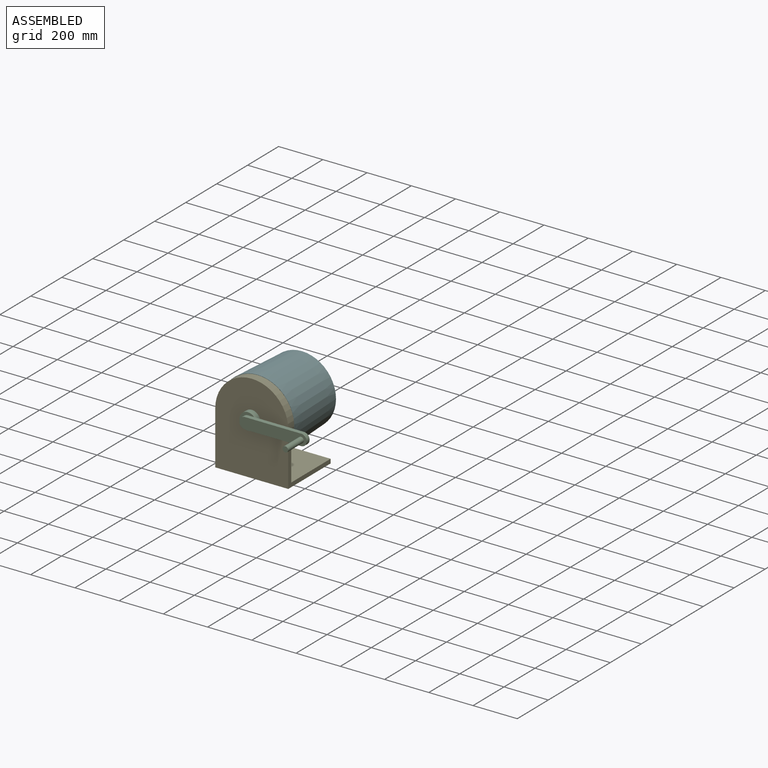
[diagram: assembled view]
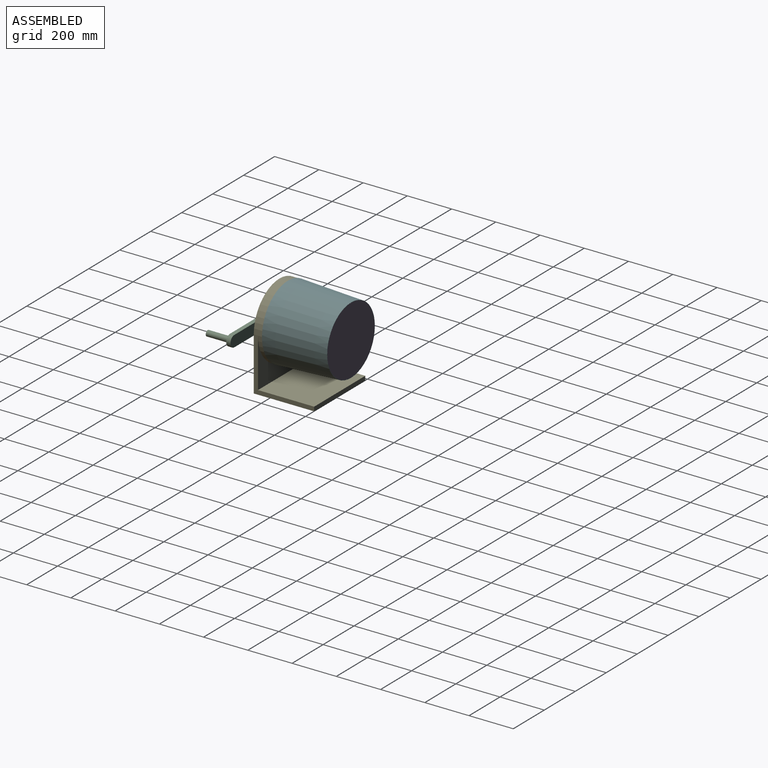
[diagram: assembled view, second angle]
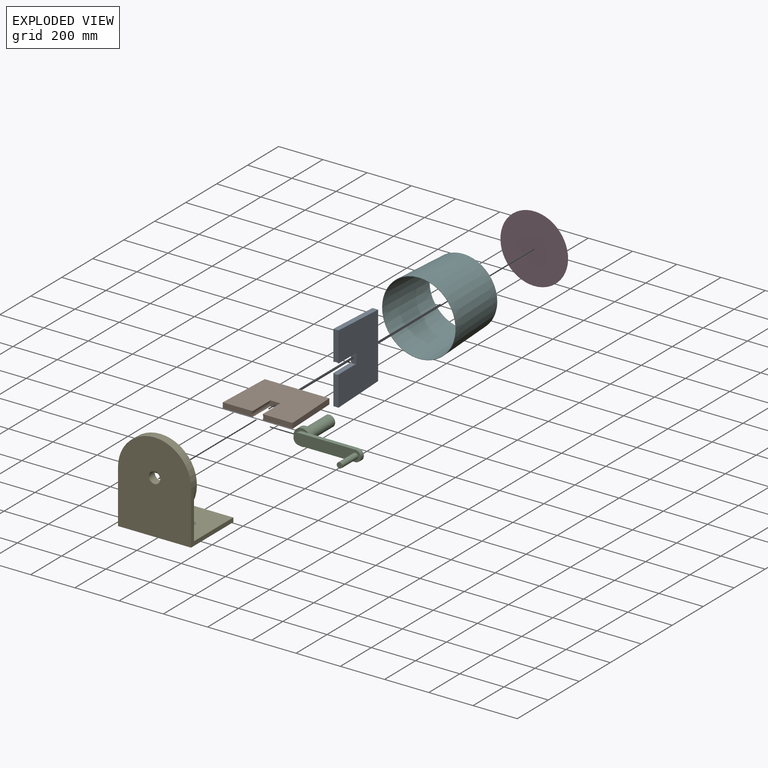
[diagram: exploded view]
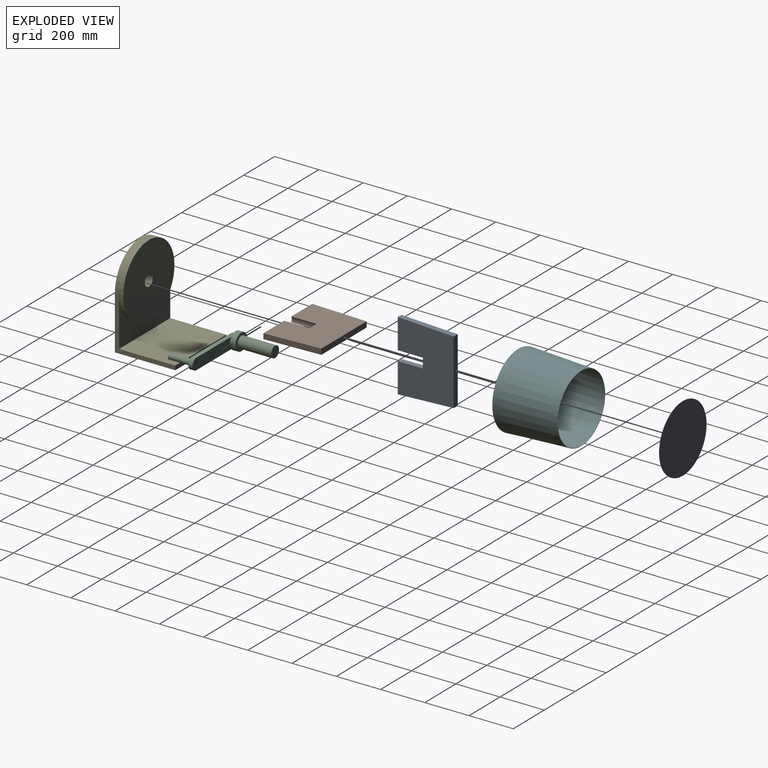
[diagram: exploded view, second angle]
ASSEMBLY  parts=6 mates=6
PART A: 10 faces, bbox 25.4x254x315.7 mm
  f0: plane 135.38x23.65mm, normal (0,-1,0), area 3155.2mm2, adj f2,f3,f4,f8
  f1: plane 254x25.4mm, normal (0,0.05,-1), area 6236.1mm2, adj f2,f4,f5,f6
  f2: plane 315.73x254mm, normal (1,0,0), area 72079.8mm2, adj f0,f1,f3,f5,f6,f7,f8,f9
  f3: plane 254x25.4mm, normal (0,0.05,1), area 6236.1mm2, adj f0,f2,f4,f5
  f4: plane 315.73x254mm, normal (-1,0,0), area 72079.8mm2, adj f0,f1,f3,f5,f6,f7,f8,f9
  f5: plane 292.1x25.4mm, normal (0,1,0), area 7419.3mm2, adj f1,f2,f3,f4
  f6: plane 135.38x23.65mm, normal (0,-1,0), area 3155.2mm2, adj f1,f2,f4,f7
  f7: cylinder r=25.4mm len=114.3mm, axis (0,-1,0), area 2862.8mm2, adj f2,f4,f6,f9
  f8: cylinder r=25.4mm len=114.3mm, axis (0,-1,0), area 2862.8mm2, adj f0,f2,f4,f9
  f9: plane 50.8x24.44mm, normal (0,-1,0), area 1191.7mm2, adj f2,f4,f7,f8
PART B: 10 faces, bbox 315.7x254x25.4 mm
  f0: plane 135.38x23.65mm, normal (0,-1,0), area 3155.2mm2, adj f2,f3,f4,f8
  f1: plane 254x25.4mm, normal (-1,0.05,0), area 6236.1mm2, adj f2,f4,f5,f6
  f2: plane 315.73x254mm, normal (0,0,-1), area 72079.8mm2, adj f0,f1,f3,f5,f6,f7,f8,f9
  f3: plane 254x25.4mm, normal (1,0.05,0), area 6236.1mm2, adj f0,f2,f4,f5
  f4: plane 315.73x254mm, normal (0,0,1), area 72079.8mm2, adj f0,f1,f3,f5,f6,f7,f8,f9
  f5: plane 292.1x25.4mm, normal (0,1,0), area 7419.3mm2, adj f1,f2,f3,f4
  f6: plane 135.38x23.65mm, normal (0,-1,0), area 3155.2mm2, adj f1,f2,f4,f7
  f7: cylinder r=25.4mm len=114.3mm, axis (0,-1,0), area 2862.8mm2, adj f2,f4,f6,f9
  f8: cylinder r=25.4mm len=114.3mm, axis (0,-1,0), area 2862.8mm2, adj f0,f2,f4,f9
  f9: plane 50.8x24.44mm, normal (0,-1,0), area 1191.7mm2, adj f2,f4,f7,f8
PART C: 13 faces, bbox 317.5x298.5x76.2 mm
  f0: plane 76.2x66.5mm, normal (0,-1,0), area 1766.4mm2, adj f1,f4,f5,f6
  f1: cylinder r=38.1mm len=76.2mm, axis (0,1,0), area 6080.5mm2, adj f0,f2,f3
  f2: plane 76.2x76.2mm, normal (0,1,0), area 2533.5mm2, adj f1,f11
  f3: plane 251x50.8mm, normal (0,1,0), area 12136mm2, adj f1,f4,f6,f7
  f4: plane 254x19.05mm, normal (0,0,-1), area 4838.7mm2, adj f0,f3,f5,f7,f8
  f5: cylinder r=25.4mm len=50.8mm, axis (0,1,0), area 1520.1mm2, adj f0,f4,f6,f8
  f6: plane 254x19.05mm, normal (0,0,1), area 4838.7mm2, adj f0,f3,f5,f7,f8
  f7: cylinder r=25.4mm len=50.8mm, axis (0,1,0), area 1520.1mm2, adj f3,f4,f6,f8
  f8: plane 304.8x50.8mm, normal (0,-1,0), area 14423.3mm2, adj f4,f5,f6,f7,f9
  f9: cylinder r=12.7mm len=101.6mm, axis (0,1,0), area 8107.3mm2, adj f8,f10
  f10: plane 25.4x25.4mm, normal (0,-1,0), area 506.7mm2, adj f9
  f11: cylinder r=25.4mm len=152.4mm, axis (0,-1,0), area 24322mm2, adj f2,f12
  f12: plane 50.8x50.8mm, normal (0,1,0), area 2026.8mm2, adj f11
PART D: 3 faces, bbox 304.8x1.6x304.8 mm
  f0: cylinder r=152.4mm len=304.8mm, axis (0,-1,0), area 1520.1mm2, adj f1,f2
  f1: plane 304.8x304.8mm, normal (0,-1,0), area 72965.9mm2, adj f0
  f2: plane 304.8x304.8mm, normal (0,1,0), area 72965.9mm2, adj f0
PART E: 10 faces, bbox 330.2x273.1x406.4 mm
  f0: cylinder r=165.1mm len=330.2mm, axis (0,1,0), area 29642.4mm2, adj f1,f2,f4,f5,f6
  f1: plane 330.2x330.2mm, normal (0,1,0), area 83606.7mm2, adj f0,f7
  f2: plane 330.2x222.25mm, normal (0,1,0), area 30570.2mm2, adj f0,f4,f5,f8
  f3: plane 330.2x273.05mm, normal (0,0,-1), area 90161.1mm2, adj f4,f5,f6,f9
  f4: plane 273.05x241.3mm, normal (-1,0,0), area 9435.5mm2, adj f0,f2,f3,f6,f8,f9
  f5: plane 273.05x241.3mm, normal (1,0,0), area 9435.5mm2, adj f0,f2,f3,f6,f8,f9
  f6: plane 406.4x330.2mm, normal (0,-1,0), area 120467.2mm2, adj f0,f3,f4,f5,f7
  f7: cylinder r=25.4mm len=50.8mm, axis (0,1,0), area 6080.5mm2, adj f1,f6
  f8: plane 330.2x254mm, normal (0,0,1), area 83870.8mm2, adj f2,f4,f5,f9
  f9: plane 330.2x19.05mm, normal (0,1,0), area 6290.3mm2, adj f3,f4,f5,f8
PART F: 4 faces, bbox 333.4x285.8x333.4 mm
  f0: cone r=152.4mm half-angle=87.5deg, axis (0,-1,0), area 1528mm2, adj f2,f3
  f1: cone r=165.1mm half-angle=87.5deg, axis (0,-1,0), area 1654.7mm2, adj f2,f3
  f2: cone r=166.69mm half-angle=2.5deg, axis (0,1,0), area 288154.6mm2, adj f0,f1
  f3: cone r=165.1mm half-angle=2.5deg, axis (0,1,0), area 285304.3mm2, adj f0,f1
PLACE A t=(0,-238.88,-425.2)mm
PLACE B t=(0,-238.88,-425.2)mm
PLACE C t=(0,-257.93,-425.2)mm
PLACE D rot(axis=(0,0,-1),180deg) t=(0,-221.35,-425.2)mm
PLACE E t=(0,-219.83,-425.2)mm
PLACE F rot(axis=(0,0,1),180deg) t=(0,-219.83,-425.2)mm
MATE fastened F.f0 <-> E.f0  axis (0,-1,0) through (0,-219.83,-425.2)mm
MATE fastened B.f7 <-> C.f11  axis (0,-1,0) through (0,-105.53,-425.2)mm
MATE revolute C.f11 <-> E.f7  axis (0,-1,0) through (0,-257.93,-425.2)mm
MATE fastened D.f0 <-> F.f0  axis (0,1,0) through (0,65.99,-425.2)mm
MATE fastened A.f7 <-> C.f11  axis (0,-1,0) through (0,-105.53,-425.2)mm
MATE fastened D.f0 <-> F.f0  axis (0,1,0) through (0,65.99,-425.2)mm
